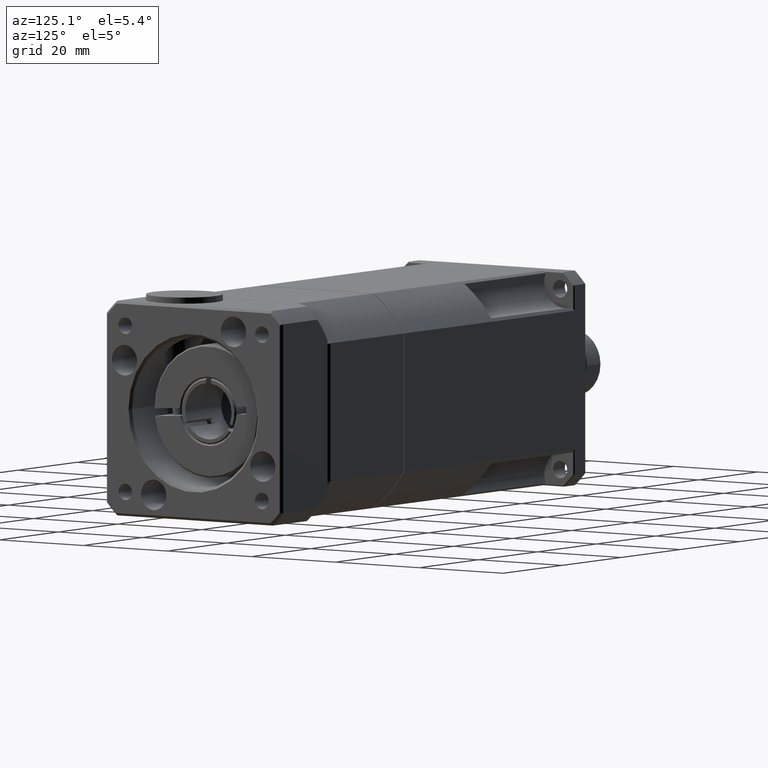
[diagram: clean part render]
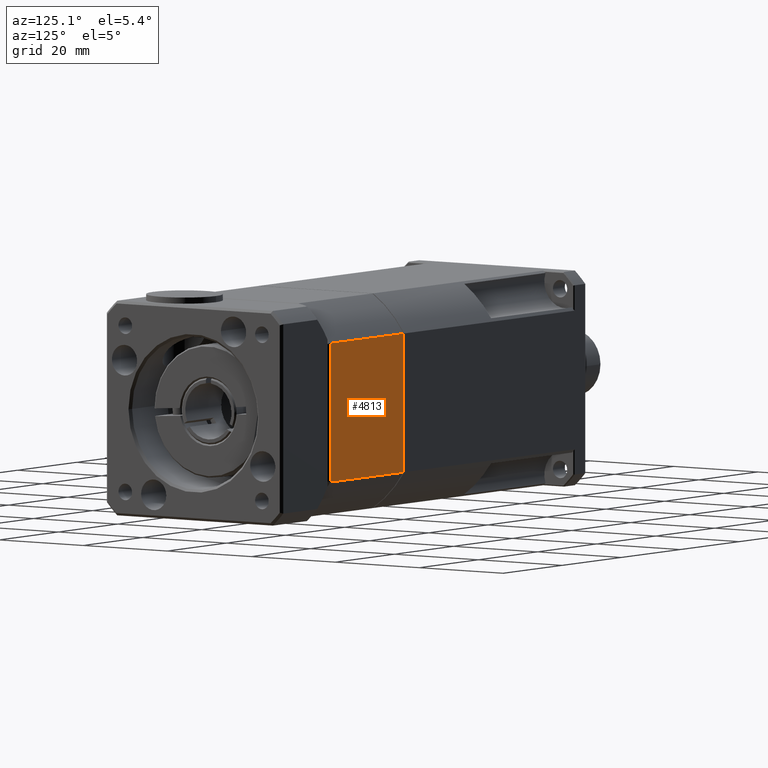
[diagram: same view with one face highlighted and labeled with its STEP entity id]
A machine part, auxiliary view. The second image highlights one B-rep face of the part: STEP entity #4813.
In plain terms, the highlighted planar face has unit normal (-0, 1, -0).
Its self-contained STEP definition (entity closure, byte-faithful):
#213=LINE('',#7810,#447);
#214=LINE('',#7815,#448);
#216=LINE('',#7821,#450);
#217=LINE('',#7822,#451);
#447=VECTOR('',#6238,27.1293199325011);
#448=VECTOR('',#6245,24.8);
#450=VECTOR('',#6251,24.8);
#451=VECTOR('',#6252,27.1293199325011);
#750=PLANE('',#5285);
#1119=FACE_OUTER_BOUND('',#1507,.T.);
#1507=EDGE_LOOP('',(#3591,#3592,#3593,#3594));
#2246=VERTEX_POINT('',#7797);
#2247=VERTEX_POINT('',#7805);
#2248=VERTEX_POINT('',#7814);
#2250=VERTEX_POINT('',#7820);
#2749=EDGE_CURVE('',#2247,#2246,#213,.T.);
#2751=EDGE_CURVE('',#2248,#2246,#214,.T.);
#2754=EDGE_CURVE('',#2247,#2250,#216,.T.);
#2755=EDGE_CURVE('',#2248,#2250,#217,.T.);
#3591=ORIENTED_EDGE('',*,*,#2749,.F.);
#3592=ORIENTED_EDGE('',*,*,#2754,.T.);
#3593=ORIENTED_EDGE('',*,*,#2755,.F.);
#3594=ORIENTED_EDGE('',*,*,#2751,.T.);
#4813=ADVANCED_FACE('',(#1119),#750,.T.);
#5285=AXIS2_PLACEMENT_3D('',#7819,#6249,#6250);
#6238=DIRECTION('',(2.09341157557153E-15,8.43629068719459E-15,1.));
#6245=DIRECTION('',(1.,1.06348745799565E-16,-2.09341157557153E-15));
#6249=DIRECTION('center_axis',(-1.06348745799583E-16,1.,-8.43629068719459E-15));
#6250=DIRECTION('ref_axis',(-2.1316282072803E-15,-8.5265128291212E-15,-1.));
#6251=DIRECTION('',(-1.,-1.06348745799565E-16,2.09341157557153E-15));
#6252=DIRECTION('',(-2.09341157557153E-15,-8.43629068719459E-15,-1.));
#7797=CARTESIAN_POINT('',(47.7159950143862,-17.8674851319123,-13.783095327883));
#7805=CARTESIAN_POINT('',(47.7159950143862,-17.8674851319126,-40.9124152603841));
#7810=CARTESIAN_POINT('',(47.7159950143862,-17.8674851319124,-16.8477552941335));
#7814=CARTESIAN_POINT('',(22.9159950143862,-17.8674851319123,-13.7830953278829));
#7815=CARTESIAN_POINT('',(48.2159950143862,-17.8674851319123,-13.783095327883));
#7819=CARTESIAN_POINT('Origin',(48.2159950143863,-17.8674851319123,-6.34775529413353));
#7820=CARTESIAN_POINT('',(22.9159950143862,-17.8674851319126,-40.912415260384));
#7821=CARTESIAN_POINT('',(48.2159950143862,-17.8674851319126,-40.9124152603841));
#7822=CARTESIAN_POINT('',(22.9159950143862,-17.8674851319124,-16.8477552941335));